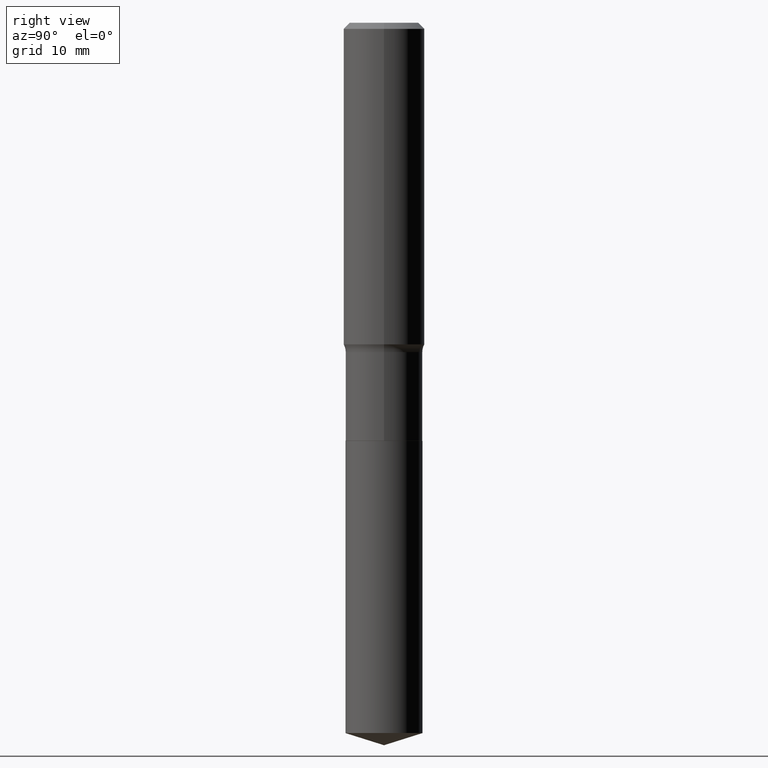
[diagram: clean part render]
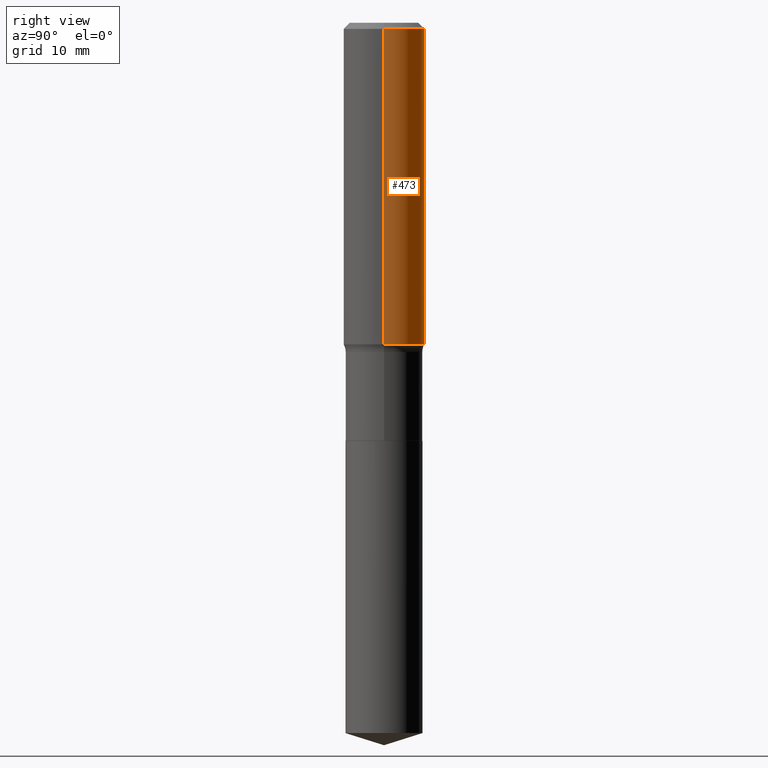
[diagram: same view with one face highlighted and labeled with its STEP entity id]
A machine part, right view. The second image highlights one B-rep face of the part: STEP entity #473.
In plain terms, the highlighted cylindrical surface (partial cylindrical patch) has radius 5 mm, axis along (-0, 0, 1).
Its self-contained STEP definition (entity closure, byte-faithful):
#5 = VERTEX_POINT ( 'NONE', #268 ) ;
#14 = AXIS2_PLACEMENT_3D ( 'NONE', #125, #261, #35 ) ;
#35 = DIRECTION ( 'NONE',  ( 1.000000000000000000, -6.982962677686266711E-15, 0.000000000000000000 ) ) ;
#39 = VERTEX_POINT ( 'NONE', #174 ) ;
#40 = VERTEX_POINT ( 'NONE', #169 ) ;
#47 = AXIS2_PLACEMENT_3D ( 'NONE', #368, #481, #178 ) ;
#53 = CARTESIAN_POINT ( 'NONE',  ( -0.1968500000000001082, 1.398703375343757985E-15, -9.682923725166787881E-30 ) ) ;
#59 = DIRECTION ( 'NONE',  ( -2.445468806185136597E-29, 3.491481338843145583E-15, 1.000000000000000000 ) ) ;
#69 = DIRECTION ( 'NONE',  ( 1.000000000000000000, -6.982962677686266711E-15, 0.000000000000000000 ) ) ;
#85 = EDGE_CURVE ( 'NONE', #249, #40, #404, .T. ) ;
#125 = CARTESIAN_POINT ( 'NONE',  ( 7.220858017463209485E-31, -1.030947152326916609E-16, -0.02952750000000019595 ) ) ;
#129 = CIRCLE ( 'NONE', #14, 0.1968500000000000527 ) ;
#132 = CYLINDRICAL_SURFACE ( 'NONE', #47, 0.1968500000000001082 ) ;
#135 = ORIENTED_EDGE ( 'NONE', *, *, #483, .F. ) ;
#154 = CARTESIAN_POINT ( 'NONE',  ( -0.1968500000000001915, -4.046115952304854648E-15, -1.559458235412674032 ) ) ;
#169 = CARTESIAN_POINT ( 'NONE',  ( -0.1968500000000000527, -1.375253646096893681E-15, -0.02952750000000019595 ) ) ;
#174 = CARTESIAN_POINT ( 'NONE',  ( 0.1968500000000001915, -6.819415530751155622E-15, -1.559458235412674032 ) ) ;
#178 = DIRECTION ( 'NONE',  ( 1.000000000000000000, -6.982962677686266711E-15, 4.876176775795935793E-29 ) ) ;
#222 = CIRCLE ( 'NONE', #418, 0.1968500000000001915 ) ;
#229 = ORIENTED_EDGE ( 'NONE', *, *, #492, .F. ) ;
#235 = EDGE_LOOP ( 'NONE', ( #314, #448, #229, #135 ) ) ;
#249 = VERTEX_POINT ( 'NONE', #154 ) ;
#261 = DIRECTION ( 'NONE',  ( -2.445468806185136597E-29, 3.491481338843145583E-15, 1.000000000000000000 ) ) ;
#268 = CARTESIAN_POINT ( 'NONE',  ( 0.1968500000000000527, -1.477690918335233688E-15, -0.02952750000000019595 ) ) ;
#309 = VECTOR ( 'NONE', #330, 39.37007874015748143 ) ;
#314 = ORIENTED_EDGE ( 'NONE', *, *, #350, .T. ) ;
#327 = VECTOR ( 'NONE', #412, 39.37007874015748143 ) ;
#330 = DIRECTION ( 'NONE',  ( -2.445468806185136877E-29, 3.491481338843145188E-15, 1.000000000000000000 ) ) ;
#350 = EDGE_CURVE ( 'NONE', #39, #249, #222, .T. ) ;
#368 = CARTESIAN_POINT ( 'NONE',  ( 0.000000000000000000, 0.000000000000000000, 0.000000000000000000 ) ) ;
#378 = CARTESIAN_POINT ( 'NONE',  ( 3.813606469250211988E-29, -5.444819327648612436E-15, -1.559458235412674032 ) ) ;
#380 = CARTESIAN_POINT ( 'NONE',  ( 0.1968500000000001082, -1.374596203102542397E-15, 9.598753983154305062E-30 ) ) ;
#404 = LINE ( 'NONE', #53, #327 ) ;
#412 = DIRECTION ( 'NONE',  ( -2.445468806185136877E-29, 3.491481338843145188E-15, 1.000000000000000000 ) ) ;
#418 = AXIS2_PLACEMENT_3D ( 'NONE', #378, #59, #69 ) ;
#419 = LINE ( 'NONE', #380, #309 ) ;
#448 = ORIENTED_EDGE ( 'NONE', *, *, #85, .T. ) ;
#473 = ADVANCED_FACE ( 'NONE', ( #489 ), #132, .T. ) ;
#481 = DIRECTION ( 'NONE',  ( -2.445468806185136597E-29, 3.491481338843145583E-15, 1.000000000000000000 ) ) ;
#483 = EDGE_CURVE ( 'NONE', #39, #5, #419, .T. ) ;
#489 = FACE_OUTER_BOUND ( 'NONE', #235, .T. ) ;
#492 = EDGE_CURVE ( 'NONE', #5, #40, #129, .T. ) ;